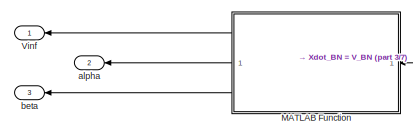
[diagram: root canvas - part 1/7, top right region]
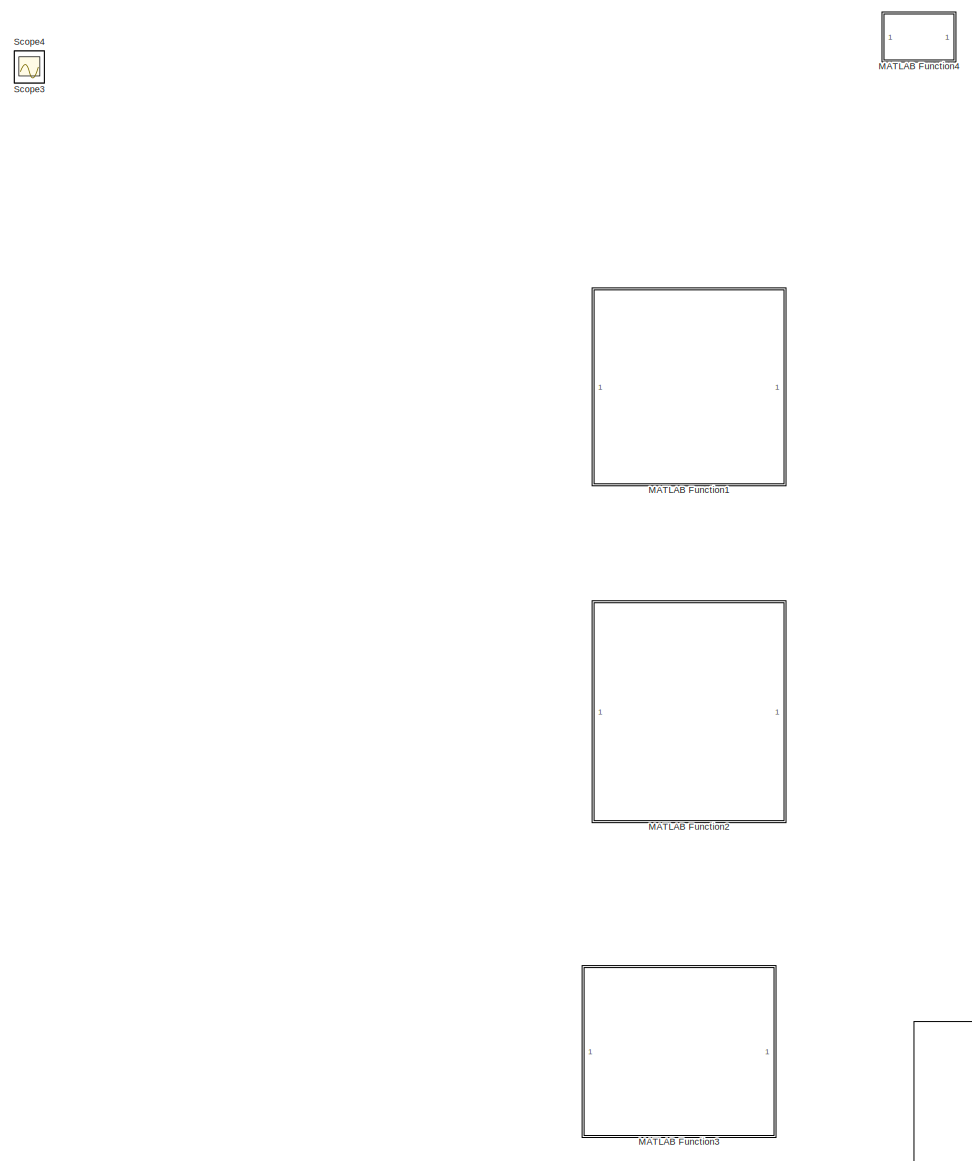
[diagram: root canvas - part 2/7, middle left region]
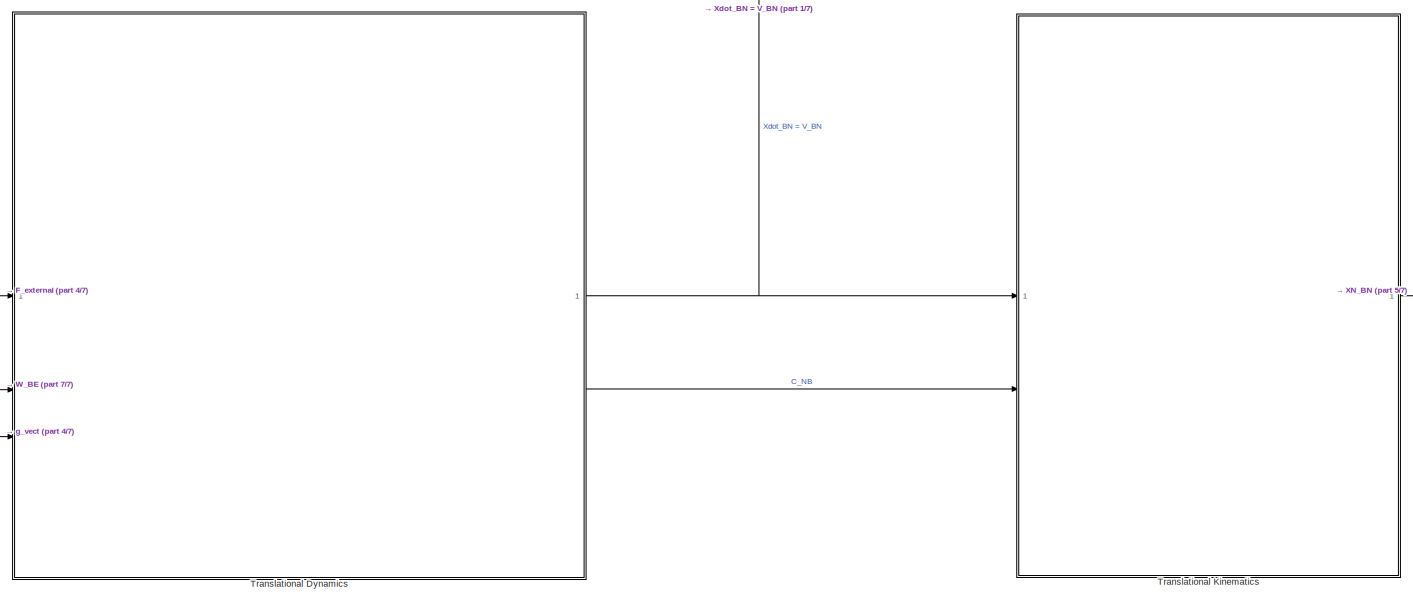
[diagram: root canvas - part 3/7, middle right region]
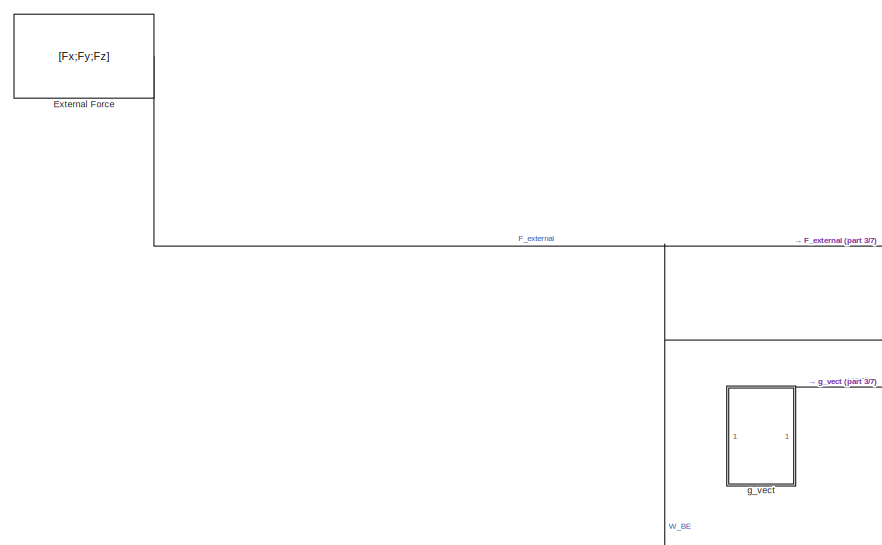
[diagram: root canvas - part 4/7, central region]
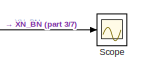
[diagram: root canvas - part 5/7, middle right region]
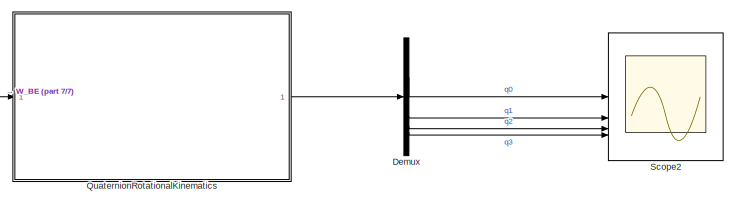
[diagram: root canvas - part 6/7, bottom right region]
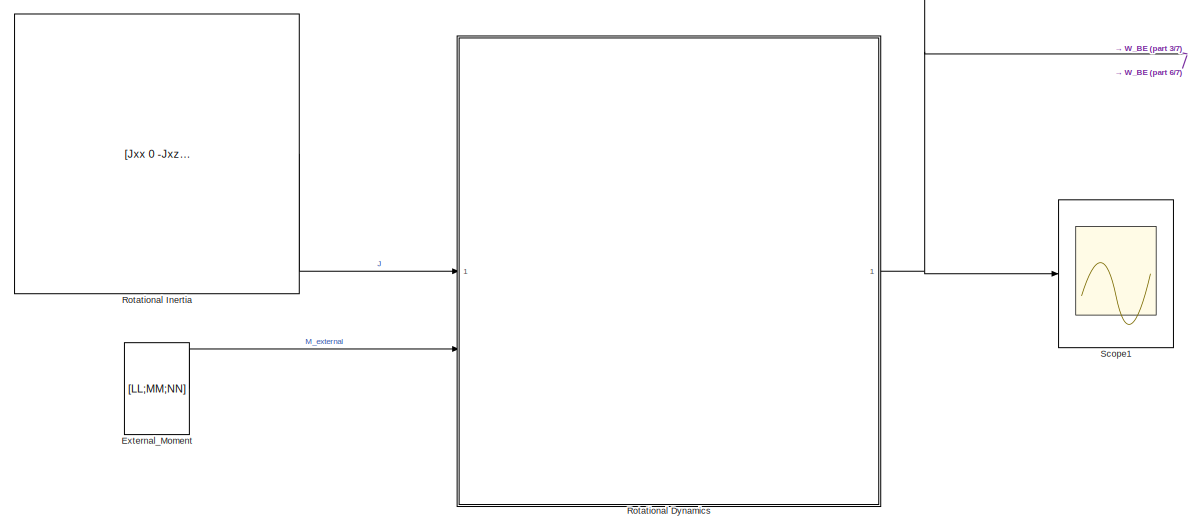
[diagram: root canvas - part 7/7, bottom center region]
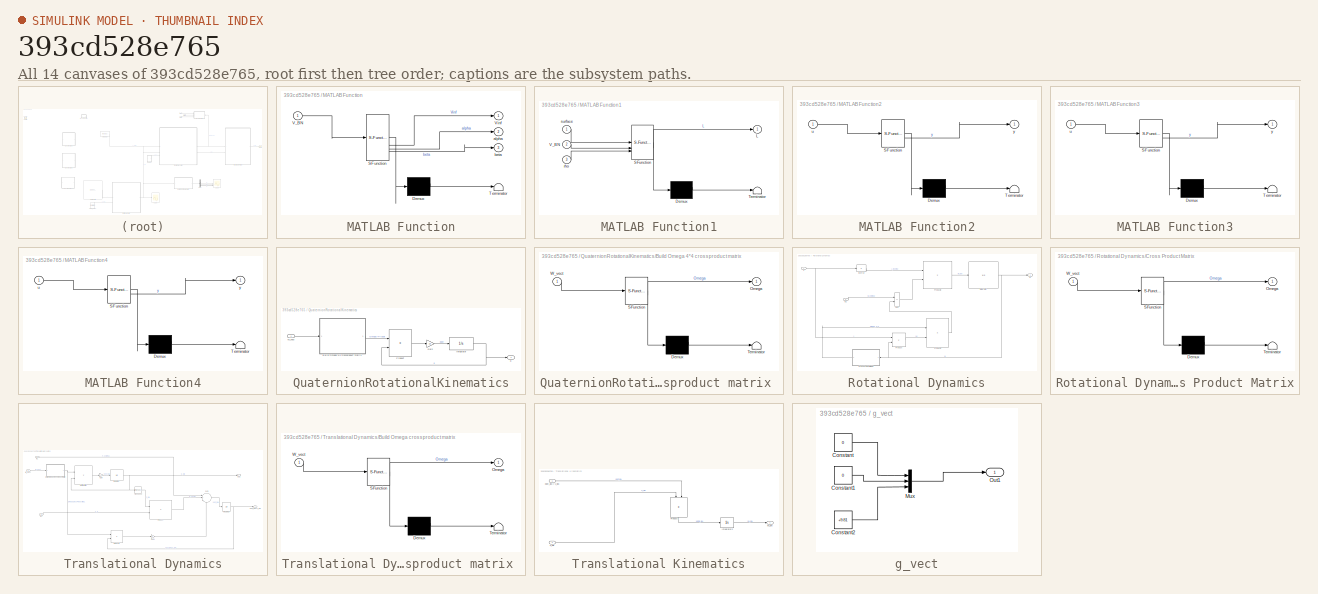
[diagram: thumbnail index - all 14 canvases of the model, root first then tree order]
MODEL slx_393cd528e765
KIND model
CONFIG AbsTol = auto
CONFIG EnableMultiTasking = off
CONFIG FixedStep = auto
CONFIG MaxStep = auto
CONFIG MinStep = auto
CONFIG RelTol = 1e-3
CONFIG SampleTimeConstraint = Unconstrained
CONFIG SolverName = ode45
CONFIG StartTime = 0.0
CONFIG StopTime = 100.0
BLOCK [Demux] Demux
BLOCK [Constant] External Force
  NameLocation = left
  Value = [Fx;Fy;Fz]
  VectorParams1D = off
BLOCK [Constant] External_Moment
  Value = [LL;MM;NN]
  VectorParams1D = off
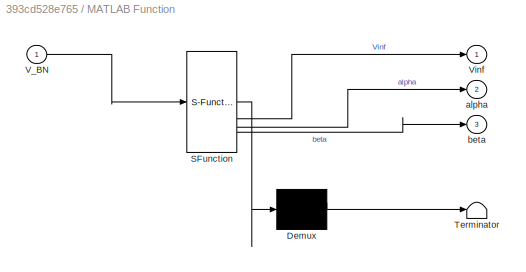
BLOCK [SubSystem] MATLAB Function
  ErrorFcn = Stateflow.Translate.translate
  NameLocation = top
  PermitHierarchicalResolution = ExplicitOnly
  SFBlockType = MATLAB Function
  TreatAsAtomicUnit = on
BLOCK [Demux] MATLAB Function/ Demux 
  Outputs = 1
BLOCK [S-Function] MATLAB Function/ SFunction 
  EnableBusSupport = on
  FunctionName = sf_sfun
  PortCounts = [1 4]
  SFcnIsStateOwnerBlock = off
  SFunctionDeploymentMode = off
  Tag = Stateflow S-Function 4
BLOCK [Terminator] MATLAB Function/ Terminator 
BLOCK [Inport] MATLAB Function/V_BN
BLOCK [Outport] MATLAB Function/Vinf
BLOCK [Outport] MATLAB Function/alpha
  Port = 2
BLOCK [Outport] MATLAB Function/beta
  Port = 3
BLOCK [SubSystem] MATLAB Function1
  ErrorFcn = Stateflow.Translate.translate
  PermitHierarchicalResolution = ExplicitOnly
  SFBlockType = MATLAB Function
  TreatAsAtomicUnit = on
BLOCK [Demux] MATLAB Function1/ Demux 
  Outputs = 1
BLOCK [S-Function] MATLAB Function1/ SFunction 
  EnableBusSupport = on
  FunctionName = sf_sfun
  PortCounts = [3 2]
  SFcnIsStateOwnerBlock = off
  SFunctionDeploymentMode = off
  Tag = Stateflow S-Function 5
BLOCK [Terminator] MATLAB Function1/ Terminator 
BLOCK [Outport] MATLAB Function1/L
BLOCK [Inport] MATLAB Function1/V_BN
  Port = 2
BLOCK [Inport] MATLAB Function1/rho
  Port = 3
BLOCK [Inport] MATLAB Function1/surface
BLOCK [SubSystem] MATLAB Function2
  ErrorFcn = Stateflow.Translate.translate
  PermitHierarchicalResolution = ExplicitOnly
  SFBlockType = MATLAB Function
  TreatAsAtomicUnit = on
BLOCK [Demux] MATLAB Function2/ Demux 
  Outputs = 1
BLOCK [S-Function] MATLAB Function2/ SFunction 
  EnableBusSupport = on
  FunctionName = sf_sfun
  PortCounts = [1 2]
  SFcnIsStateOwnerBlock = off
  SFunctionDeploymentMode = off
  Tag = Stateflow S-Function 6
BLOCK [Terminator] MATLAB Function2/ Terminator 
BLOCK [Inport] MATLAB Function2/u
BLOCK [Outport] MATLAB Function2/y
BLOCK [SubSystem] MATLAB Function3
  ErrorFcn = Stateflow.Translate.translate
  PermitHierarchicalResolution = ExplicitOnly
  SFBlockType = MATLAB Function
  TreatAsAtomicUnit = on
BLOCK [Demux] MATLAB Function3/ Demux 
  Outputs = 1
BLOCK [S-Function] MATLAB Function3/ SFunction 
  EnableBusSupport = on
  FunctionName = sf_sfun
  PortCounts = [1 2]
  SFcnIsStateOwnerBlock = off
  SFunctionDeploymentMode = off
  Tag = Stateflow S-Function 7
BLOCK [Terminator] MATLAB Function3/ Terminator 
BLOCK [Inport] MATLAB Function3/u
BLOCK [Outport] MATLAB Function3/y
BLOCK [SubSystem] MATLAB Function4
  ErrorFcn = Stateflow.Translate.translate
  PermitHierarchicalResolution = ExplicitOnly
  SFBlockType = MATLAB Function
  TreatAsAtomicUnit = on
BLOCK [Demux] MATLAB Function4/ Demux 
  Outputs = 1
BLOCK [S-Function] MATLAB Function4/ SFunction 
  EnableBusSupport = off
  FunctionName = sf_sfun
  PortCounts = [1 2]
  SFcnIsStateOwnerBlock = off
  SFunctionDeploymentMode = off
  Tag = Stateflow S-Function 8
BLOCK [Terminator] MATLAB Function4/ Terminator 
BLOCK [Inport] MATLAB Function4/u
BLOCK [Outport] MATLAB Function4/y
BLOCK [SubSystem] QuaternionRotationalKinematics
BLOCK [SubSystem] QuaternionRotationalKinematics/Build Omega 4*4 crossproduct matrix 
  ErrorFcn = Stateflow.Translate.translate
  LibrarySourceBlock = simulink/User-Defined\nFunctions/MATLAB Function
  PermitHierarchicalResolution = ExplicitOnly
  SFBlockType = MATLAB Function
  TreatAsAtomicUnit = on
BLOCK [Demux] QuaternionRotationalKinematics/Build Omega 4*4 crossproduct matrix / Demux 
  Outputs = 1
BLOCK [S-Function] QuaternionRotationalKinematics/Build Omega 4*4 crossproduct matrix / SFunction 
  EnableBusSupport = on
  FunctionName = sf_sfun
  PortCounts = [1 2]
  SFcnIsStateOwnerBlock = off
  SFunctionDeploymentMode = off
  Tag = Stateflow S-Function 3
BLOCK [Terminator] QuaternionRotationalKinematics/Build Omega 4*4 crossproduct matrix / Terminator 
BLOCK [Outport] QuaternionRotationalKinematics/Build Omega 4*4 crossproduct matrix /Omega
BLOCK [Inport] QuaternionRotationalKinematics/Build Omega 4*4 crossproduct matrix /W_vect
BLOCK [Gain] QuaternionRotationalKinematics/Gain
  Gain = 1/2
BLOCK [Integrator] QuaternionRotationalKinematics/Integrator
  InitialCondition = q0
BLOCK [Product] QuaternionRotationalKinematics/Product
  Multiplication = Matrix(*)
BLOCK [Inport] QuaternionRotationalKinematics/W_vect
BLOCK [Outport] QuaternionRotationalKinematics/q
BLOCK [SubSystem] Rotational Dynamics
BLOCK [SubSystem] Rotational Dynamics/Cross Product Matrix
  ErrorFcn = Stateflow.Translate.translate
  LibrarySourceBlock = simulink/User-Defined\nFunctions/MATLAB Function
  NameLocation = top
  PermitHierarchicalResolution = ExplicitOnly
  SFBlockType = MATLAB Function
  TreatAsAtomicUnit = on
BLOCK [Demux] Rotational Dynamics/Cross Product Matrix/ Demux 
  Outputs = 1
BLOCK [S-Function] Rotational Dynamics/Cross Product Matrix/ SFunction 
  EnableBusSupport = on
  FunctionName = sf_sfun
  PortCounts = [1 2]
  SFcnIsStateOwnerBlock = off
  SFunctionDeploymentMode = off
  Tag = Stateflow S-Function 1
BLOCK [Terminator] Rotational Dynamics/Cross Product Matrix/ Terminator 
BLOCK [Outport] Rotational Dynamics/Cross Product Matrix/Omega
BLOCK [Inport] Rotational Dynamics/Cross Product Matrix/W_vect
BLOCK [Inport] Rotational Dynamics/In2
  Port = 2
BLOCK [Integrator] Rotational Dynamics/Integrator
  InitialCondition = [10;0;0]
  ZeroCross = off
BLOCK [Product] Rotational Dynamics/Inverse
  Inputs = /
  Multiplication = Matrix(*)
BLOCK [Inport] Rotational Dynamics/J
BLOCK [Product] Rotational Dynamics/Product
  Multiplication = Matrix(*)
BLOCK [Product] Rotational Dynamics/Product1
  Multiplication = Matrix(*)
BLOCK [Product] Rotational Dynamics/Product2
  Multiplication = Matrix(*)
BLOCK [Sum] Rotational Dynamics/Sum
  IconShape = rectangular
  Inputs = |+-
BLOCK [Outport] Rotational Dynamics/W
BLOCK [Constant] Rotational Inertia
  Value = [Jxx 0 -Jxz; 0 Jyy 0; -Jxz 0 Jzz];
  VectorParams1D = off
BLOCK [Scope] Scope
  Floating = off
  NumInputPorts = 1
  ScopeSpecificationString = Simulink.scopes.TimeScopeBlockCfg('CurrentConfiguration', extmgr.ConfigurationSet(extmgr.Configuration('Core','General UI',true,'FigureColor',[1 1 1]),extmgr.Configuration('Core','Source UI',true),extmgr.Configuration('Sources','WiredSimulink',true),extmgr.Configuration('Visuals','Time Domain',true,'SerializedDisplays',{struct('MinYLimReal','-8092950.00469','MaxYLimReal','15374263.61293','YLabelRe...<+1948ch>
BLOCK [Scope] Scope1
  Floating = off
  NumInputPorts = 1
  ScopeSpecificationString = Simulink.scopes.TimeScopeBlockCfg('CurrentConfiguration', extmgr.ConfigurationSet(extmgr.Configuration('Core','General UI',true,'FigureColor',[1 1 1]),extmgr.Configuration('Core','Source UI',true),extmgr.Configuration('Sources','WiredSimulink',true,'DataLoggingVariableName','ScopeData1'),extmgr.Configuration('Visuals','Time Domain',true,'SerializedDisplays',{struct('MinYLimReal','-5.43969','MaxYLi...<+1822ch>
BLOCK [Scope] Scope2
  Floating = off
  NumInputPorts = 4
  ScopeSpecificationString = Simulink.scopes.TimeScopeBlockCfg('CurrentConfiguration', extmgr.ConfigurationSet(extmgr.Configuration('Core','General UI',true,'FigureColor',[1 1 1]),extmgr.Configuration('Core','Source UI',true),extmgr.Configuration('Sources','WiredSimulink',true,'DataLoggingVariableName','ScopeData2'),extmgr.Configuration('Visuals','Time Domain',true,'SerializedDisplays',{struct('MinYLimReal','-1.24997','MaxYLi...<+1975ch>
BLOCK [Scope] Scope3
  Floating = off
  IOType = viewer
  NumInputPorts = 1
  ScopeSpecificationString = Simulink.scopes.TimeScopeBlockCfg('CurrentConfiguration', extmgr.ConfigurationSet(extmgr.Configuration('Core','General UI',true),extmgr.Configuration('Core','Source UI',true),extmgr.Configuration('Sources','WiredSimulink',true,'DataLoggingVariableName','ScopeData1'),extmgr.Configuration('Visuals','Time Domain',true,'SerializedDisplays',{struct('MinYLimReal','-35.00121','MaxYLimReal','20.54701','YL...<+1550ch>
BLOCK [Scope] Scope4
  Floating = off
  IOType = viewer
  NumInputPorts = 1
  ScopeSpecificationString = Simulink.scopes.TimeScopeBlockCfg('CurrentConfiguration', extmgr.ConfigurationSet(extmgr.Configuration('Core','General UI',true),extmgr.Configuration('Core','Source UI',true),extmgr.Configuration('Sources','WiredSimulink',true,'DataLoggingVariableName','ScopeData2'),extmgr.Configuration('Visuals','Time Domain',true,'SerializedDisplays',{struct('MinYLimReal','-1.41751','MaxYLimReal','0.88379','YLab...<+1525ch>
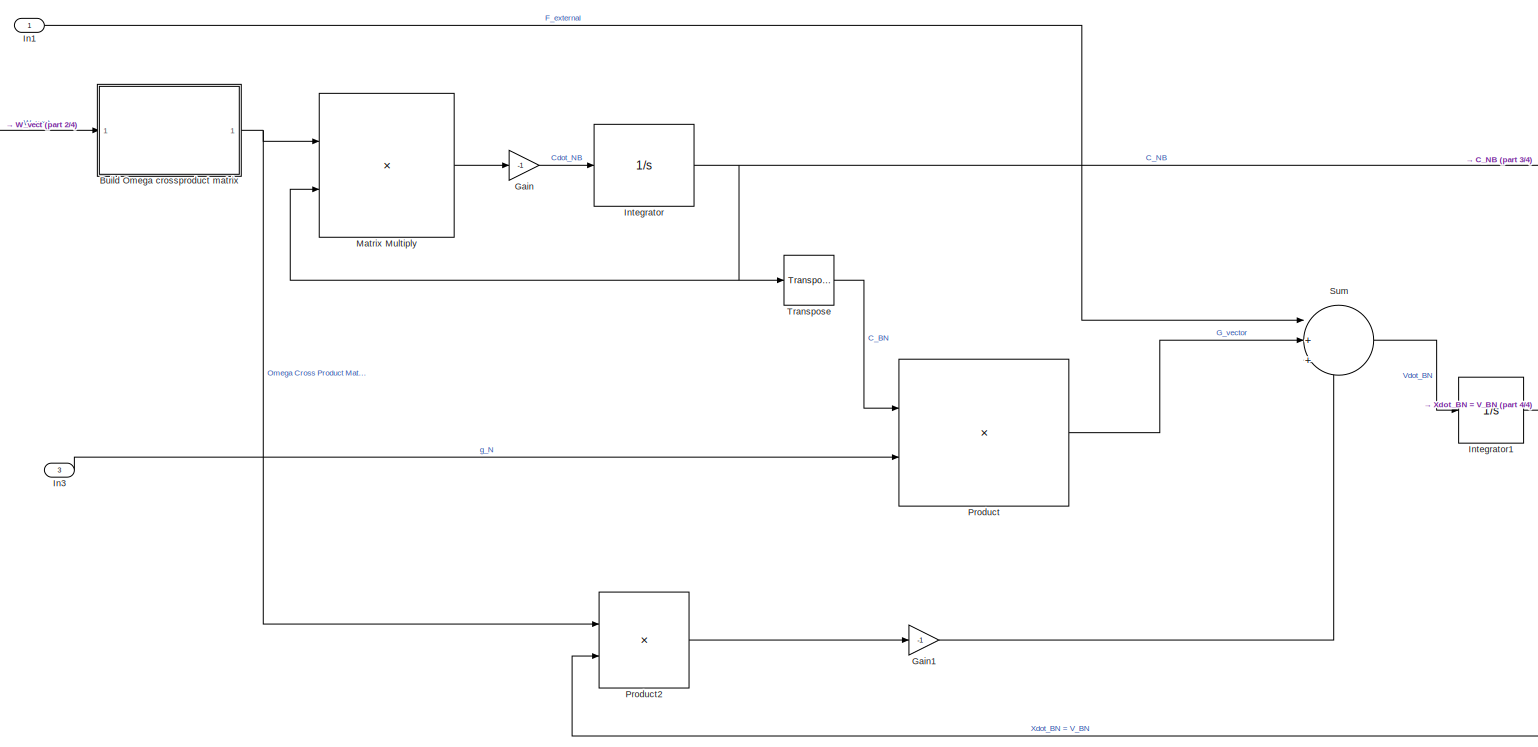
[diagram: Translational Dynamics - part 1/4, most of the canvas]
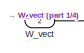
[diagram: Translational Dynamics - part 2/4, top left region]
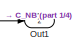
[diagram: Translational Dynamics - part 3/4, top right region]
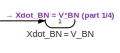
[diagram: Translational Dynamics - part 4/4, middle right region]
BLOCK [SubSystem] Translational Dynamics
BLOCK [SubSystem] Translational Dynamics/Build Omega crossproduct matrix 
  ErrorFcn = Stateflow.Translate.translate
  LibrarySourceBlock = simulink/User-Defined\nFunctions/MATLAB Function
  PermitHierarchicalResolution = ExplicitOnly
  SFBlockType = MATLAB Function
  TreatAsAtomicUnit = on
BLOCK [Demux] Translational Dynamics/Build Omega crossproduct matrix / Demux 
  Outputs = 1
BLOCK [S-Function] Translational Dynamics/Build Omega crossproduct matrix / SFunction 
  EnableBusSupport = on
  FunctionName = sf_sfun
  PortCounts = [1 2]
  SFcnIsStateOwnerBlock = off
  SFunctionDeploymentMode = off
  Tag = Stateflow S-Function 2
BLOCK [Terminator] Translational Dynamics/Build Omega crossproduct matrix / Terminator 
BLOCK [Outport] Translational Dynamics/Build Omega crossproduct matrix /Omega
BLOCK [Inport] Translational Dynamics/Build Omega crossproduct matrix /W_vect
BLOCK [Gain] Translational Dynamics/Gain
  Gain = -1
BLOCK [Gain] Translational Dynamics/Gain1
  Gain = -1
BLOCK [Inport] Translational Dynamics/In1
BLOCK [Inport] Translational Dynamics/In3
  Port = 3
BLOCK [Integrator] Translational Dynamics/Integrator
  InitialCondition = Cnb0
BLOCK [Integrator] Translational Dynamics/Integrator1
  InitialCondition = [100;0;0]
BLOCK [Product] Translational Dynamics/Matrix Multiply
  Multiplication = Matrix(*)
BLOCK [Outport] Translational Dynamics/Out1
  Port = 2
BLOCK [Product] Translational Dynamics/Product
  Multiplication = Matrix(*)
BLOCK [Product] Translational Dynamics/Product2
  Multiplication = Matrix(*)
BLOCK [Sum] Translational Dynamics/Sum
  Inputs = |+++
BLOCK [Reference] Translational Dynamics/Transpose  REF=matrix_library/Transpose
  LibrarySourceBlock = simulink/Matrix\nOperations/Transpose
  SourceBlock = matrix_library/Transpose
  SourceType = Transpose
BLOCK [Inport] Translational Dynamics/W_vect
  Port = 2
BLOCK [Outport] Translational Dynamics/Xdot_BN = V_BN
BLOCK [SubSystem] Translational Kinematics
BLOCK [Inport] Translational Kinematics/C_NB
  Port = 2
BLOCK [Integrator] Translational Kinematics/Integrator2
  InitialCondition = x0
BLOCK [Product] Translational Kinematics/Product1
  Multiplication = Matrix(*)
  NameLocation = left
BLOCK [Outport] Translational Kinematics/XN_BN
BLOCK [Inport] Translational Kinematics/Xdot_BN = V_BN
BLOCK [Outport] Vinf
  NameLocation = top
BLOCK [Outport] alpha
  NameLocation = top
  Port = 2
BLOCK [Outport] beta
  NameLocation = top
  Port = 3
BLOCK [SubSystem] g_vect
BLOCK [Constant] g_vect/Constant
  Value = 0
BLOCK [Constant] g_vect/Constant1
  Value = 0
BLOCK [Constant] g_vect/Constant2
  Value = +9.81
BLOCK [Mux] g_vect/Mux
  DisplayOption = bar
  Inputs = 3
BLOCK [Outport] g_vect/Out1
LINE Demux:1 -> Scope2:1
LINE Demux:2 -> Scope2:2
LINE Demux:3 -> Scope2:3
LINE Demux:4 -> Scope2:4
LINE External Force:1 -> Translational Dynamics:1
LINE External_Moment:1 -> Rotational Dynamics:2
LINE MATLAB Function:1 -> Vinf:1
LINE MATLAB Function:2 -> alpha:1
LINE MATLAB Function:3 -> beta:1
LINE QuaternionRotationalKinematics/Build Omega 4*4 crossproduct matrix :1 -> QuaternionRotationalKinematics/Product:1
LINE QuaternionRotationalKinematics/Gain:1 -> QuaternionRotationalKinematics/Integrator:1
NET QuaternionRotationalKinematics/Integrator:1 -> QuaternionRotationalKinematics/Product:2, QuaternionRotationalKinematics/q:1
LINE QuaternionRotationalKinematics/Product:1 -> QuaternionRotationalKinematics/Gain:1
LINE QuaternionRotationalKinematics/W_vect:1 -> QuaternionRotationalKinematics/Build Omega 4*4 crossproduct matrix :1
LINE QuaternionRotationalKinematics:1 -> Demux:1
LINE Rotational Dynamics/Cross Product Matrix:1 -> Rotational Dynamics/Product1:1
LINE Rotational Dynamics/In2:1 -> Rotational Dynamics/Sum:1
NET Rotational Dynamics/Integrator:1 -> Rotational Dynamics/Cross Product Matrix:1, Rotational Dynamics/Product:2, Rotational Dynamics/W:1
LINE Rotational Dynamics/Inverse:1 -> Rotational Dynamics/Product2:1
NET Rotational Dynamics/J:1 -> Rotational Dynamics/Inverse:1, Rotational Dynamics/Product:1
LINE Rotational Dynamics/Product1:1 -> Rotational Dynamics/Sum:2
LINE Rotational Dynamics/Product2:1 -> Rotational Dynamics/Integrator:1
LINE Rotational Dynamics/Product:1 -> Rotational Dynamics/Product1:2
LINE Rotational Dynamics/Sum:1 -> Rotational Dynamics/Product2:2
NET Rotational Dynamics:1 -> QuaternionRotationalKinematics:1, Scope1:1, Translational Dynamics:2
LINE Rotational Inertia:1 -> Rotational Dynamics:1
NET Translational Dynamics/Build Omega crossproduct matrix :1 -> Translational Dynamics/Matrix Multiply:1, Translational Dynamics/Product2:1
LINE Translational Dynamics/Gain1:1 -> Translational Dynamics/Sum:3
LINE Translational Dynamics/Gain:1 -> Translational Dynamics/Integrator:1
LINE Translational Dynamics/In1:1 -> Translational Dynamics/Sum:1
LINE Translational Dynamics/In3:1 -> Translational Dynamics/Product:2
NET Translational Dynamics/Integrator1:1 -> Translational Dynamics/Product2:2, Translational Dynamics/Xdot_BN = V_BN:1
NET Translational Dynamics/Integrator:1 -> Translational Dynamics/Matrix Multiply:2, Translational Dynamics/Out1:1, Translational Dynamics/Transpose:1
LINE Translational Dynamics/Matrix Multiply:1 -> Translational Dynamics/Gain:1
LINE Translational Dynamics/Product2:1 -> Translational Dynamics/Gain1:1
LINE Translational Dynamics/Product:1 -> Translational Dynamics/Sum:2
LINE Translational Dynamics/Sum:1 -> Translational Dynamics/Integrator1:1
LINE Translational Dynamics/Transpose:1 -> Translational Dynamics/Product:1
LINE Translational Dynamics/W_vect:1 -> Translational Dynamics/Build Omega crossproduct matrix :1
NET Translational Dynamics:1 -> MATLAB Function:1, Translational Kinematics:1
LINE Translational Dynamics:2 -> Translational Kinematics:2
LINE Translational Kinematics/C_NB:1 -> Translational Kinematics/Product1:1
LINE Translational Kinematics/Integrator2:1 -> Translational Kinematics/XN_BN:1
LINE Translational Kinematics/Product1:1 -> Translational Kinematics/Integrator2:1
LINE Translational Kinematics/Xdot_BN = V_BN:1 -> Translational Kinematics/Product1:2
LINE Translational Kinematics:1 -> Scope:1
LINE g_vect/Constant1:1 -> g_vect/Mux:2
LINE g_vect/Constant2:1 -> g_vect/Mux:3
LINE g_vect/Constant:1 -> g_vect/Mux:1
LINE g_vect/Mux:1 -> g_vect/Out1:1
LINE g_vect:1 -> Translational Dynamics:3
note: NET lines group one-source signal fan-out (src -> all destinations, sorted); 1:1 wires keep LINE
CHART Rotational Dynamics/Cross Product Matrix states=1 transitions=1
  STATE_LABEL 'eML_blk_kernel()'
  STATE_LABEL 'SCRIPT:\nfunction Omega = fcn(W_vect)\n\np = W_vect(1);\nq = W_vect(2);\nr = W_vect(3);\n\n\nOmega = [0 -r q;\n    r 0 -p;\n    -q p 0];\n'
CHART Translational Dynamics/Build Omega crossproduct matrix  states=1 transitions=1
  STATE_LABEL 'eML_blk_kernel()'
  STATE_LABEL 'SCRIPT:\nfunction Omega = fcn(W_vect)\n\np = W_vect(1);\nq = W_vect(2);\nr = W_vect(3);\n\n\nOmega = [0 -r q;\n    r 0 -p;\n    -q p 0];\n'
CHART QuaternionRotationalKinematics/Build Omega 4*4 crossproduct matrix  states=1 transitions=1
  STATE_LABEL 'eML_blk_kernel()'
  STATE_LABEL 'SCRIPT:\nfunction Omega = fcn(W_vect)\n\nwx = W_vect(1);\nwy = W_vect(2);\nwz = W_vect(3);\n\n\nOmega = [0 -wx -wy -wz;\n    wx 0 wz -wy;\n    wy -wz 0 wx;\n    wz wy -wx 0];\n'
CHART MATLAB Function states=1 transitions=1
  STATE_LABEL 'eML_blk_kernel()'
  STATE_LABEL 'SCRIPT:\nfunction [Vinf,alpha,beta]= fcn(V_BN)\n\nalpha = atan2(V_BN(3),V_BN(1));\nu = norm(V_BN);\nX = V_BN(2)/u;\nbeta = asin(X);\nVinf = u;\n\n'
CHART MATLAB Function1 states=1 transitions=1
  STATE_LABEL 'eML_blk_kernel()'
  STATE_LABEL 'SCRIPT:\nfunction L = calculate_lift(surface,V_BN,rho)\nCls = surface.CL0 + surface.CLa * (surface.i-asin());\n\nL = Cls * 0.5 * rho * norm(V_BN)^2 * surface.area;\n'
CHART MATLAB Function2 states=1 transitions=1
  STATE_LABEL 'eML_blk_kernel()'
  STATE_LABEL 'SCRIPT:\nfunction y = calculate_drag(u)\n\ny = u;\n'
CHART MATLAB Function3 states=1 transitions=1
  STATE_LABEL 'eML_blk_kernel()'
  STATE_LABEL 'SCRIPT:\nfunction y = fcn(u)\n\ny = u;\n'
CHART MATLAB Function4 states=1 transitions=1
  STATE_LABEL 'eML_blk_kernel()'
  STATE_LABEL 'SCRIPT:\nfunction y = fcn(u)\n\ny = u;\n'
CHART  states=0 transitions=0
CHART  states=0 transitions=0
CHART  states=0 transitions=0
CHART  states=0 transitions=0
CHART  states=0 transitions=0
CHART  states=0 transitions=0
CHART  states=0 transitions=0
CHART  states=0 transitions=0
